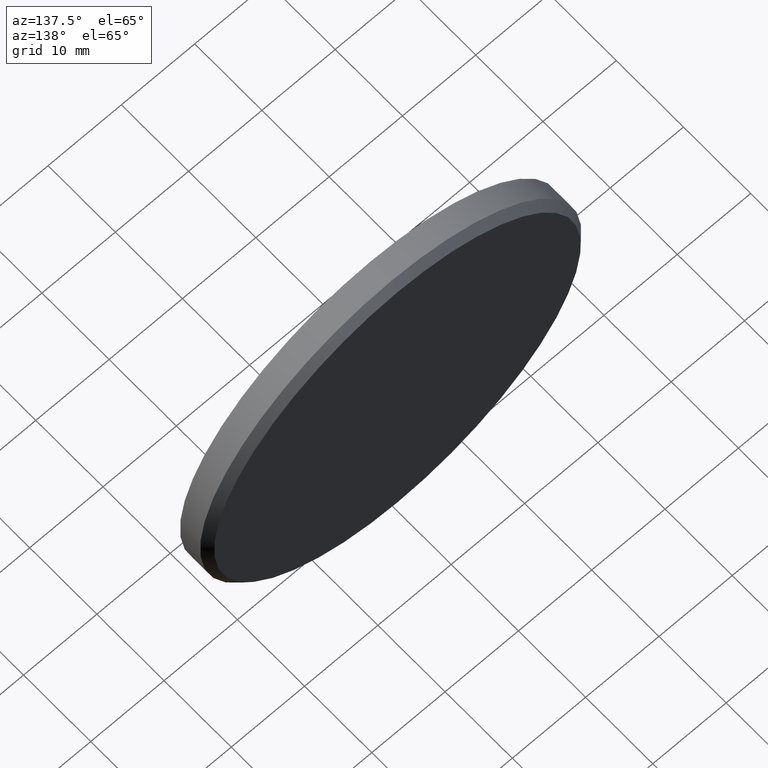
[diagram: clean part render]
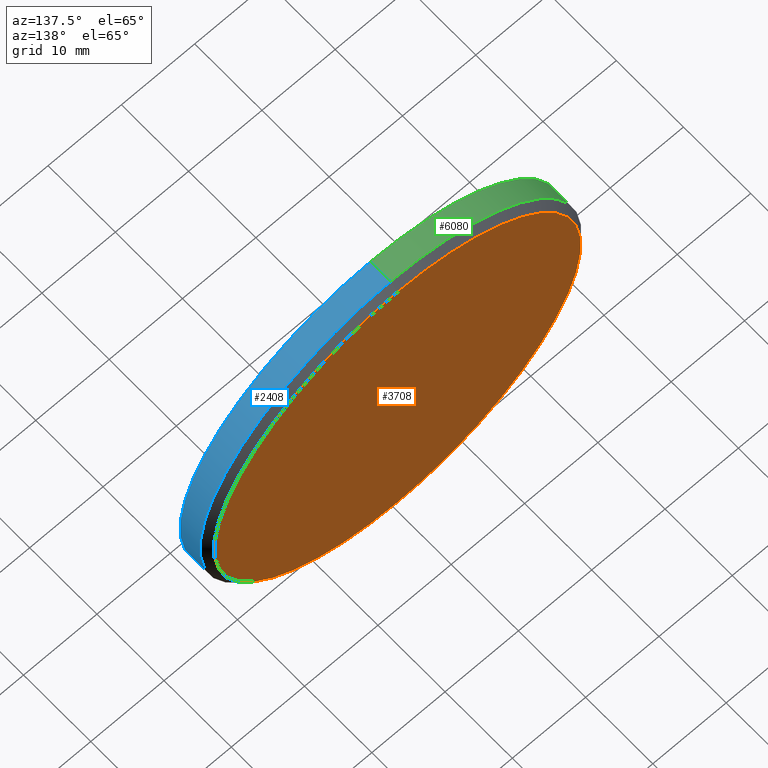
[diagram: same view with three faces highlighted in distinct colors, each labeled with its STEP entity id]
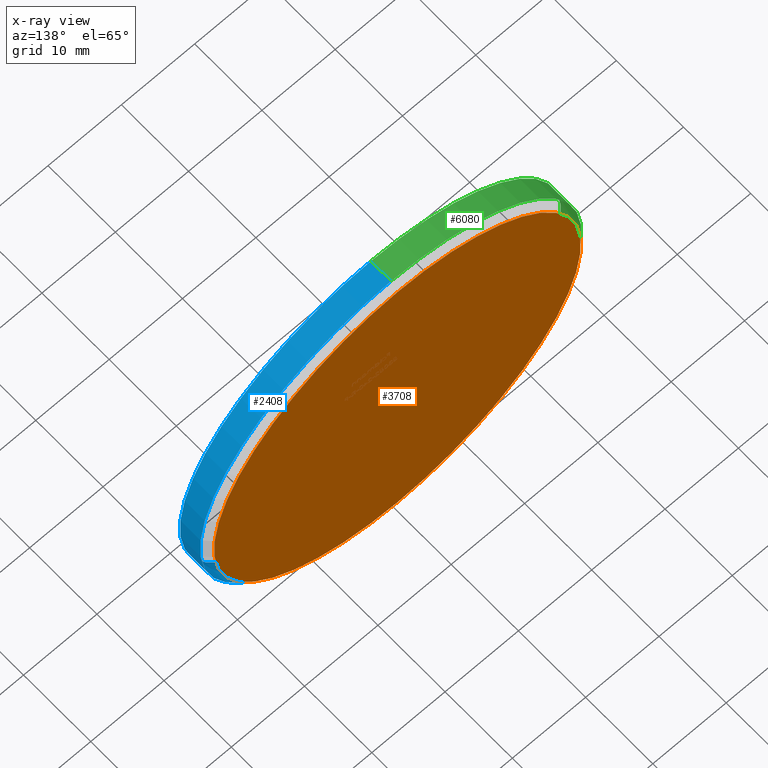
[diagram: x-ray of the same camera — body ghosted, the three highlighted faces saturated]
A machine part, auxiliary view with three faces highlighted in distinct colors.
The next image is the same camera in x-ray (body ghosted, the three faces saturated) — at least one of them is partly hidden behind the body in this view.
Their STEP definitions:

[orange] entity #3708 — the highlighted planar face has unit normal (0, 1, 0).
#278 = CARTESIAN_POINT ( 'NONE',  ( 0.000000000000000000, 2.000000000000000000, -25.00000000000001421 ) ) ;
#674 = CARTESIAN_POINT ( 'NONE',  ( 0.000000000000000000, 2.000000000000000000, 0.000000000000000000 ) ) ;
#1842 = DIRECTION ( 'NONE',  ( 0.000000000000000000, 1.000000000000000000, 0.000000000000000000 ) ) ;
#2423 = FACE_OUTER_BOUND ( 'NONE', #3635, .T. ) ;
#2846 = PLANE ( 'NONE',  #4662 ) ;
#3635 = EDGE_LOOP ( 'NONE', ( #7899, #14395 ) ) ;
#3708 = ADVANCED_FACE ( 'NONE', ( #2423 ), #2846, .T. ) ;
#3841 = CIRCLE ( 'NONE', #10039, 25.00000000000001421 ) ;
#3885 = EDGE_CURVE ( 'NONE', #4814, #8235, #3841, .T. ) ;
#4662 = AXIS2_PLACEMENT_3D ( 'NONE', #674, #1842, #11075 ) ;
#4668 = EDGE_CURVE ( 'NONE', #8235, #4814, #7441, .T. ) ;
#4814 = VERTEX_POINT ( 'NONE', #10051 ) ;
#7152 = DIRECTION ( 'NONE',  ( 0.000000000000000000, 0.000000000000000000, 1.000000000000000000 ) ) ;
#7441 = CIRCLE ( 'NONE', #10457, 25.00000000000001421 ) ;
#7899 = ORIENTED_EDGE ( 'NONE', *, *, #4668, .T. ) ;
#8235 = VERTEX_POINT ( 'NONE', #278 ) ;
#8416 = CARTESIAN_POINT ( 'NONE',  ( 0.000000000000000000, 2.000000000000000000, 0.000000000000000000 ) ) ;
#9065 = CARTESIAN_POINT ( 'NONE',  ( 0.000000000000000000, 2.000000000000000000, 0.000000000000000000 ) ) ;
#10039 = AXIS2_PLACEMENT_3D ( 'NONE', #9065, #13688, #14680 ) ;
#10051 = CARTESIAN_POINT ( 'NONE',  ( 3.122849337825751406E-15, 2.000000000000000000, 25.00000000000001421 ) ) ;
#10457 = AXIS2_PLACEMENT_3D ( 'NONE', #8416, #14199, #7152 ) ;
#11075 = DIRECTION ( 'NONE',  ( 0.000000000000000000, -0.000000000000000000, 1.000000000000000000 ) ) ;
#13688 = DIRECTION ( 'NONE',  ( 0.000000000000000000, 1.000000000000000000, 0.000000000000000000 ) ) ;
#14199 = DIRECTION ( 'NONE',  ( 0.000000000000000000, 1.000000000000000000, 0.000000000000000000 ) ) ;
#14395 = ORIENTED_EDGE ( 'NONE', *, *, #3885, .T. ) ;
#14680 = DIRECTION ( 'NONE',  ( 0.000000000000000000, 0.000000000000000000, 1.000000000000000000 ) ) ;

[blue] entity #2408 — the highlighted cylindrical surface (partial cylindrical patch) has radius 26 mm, axis along (-0, -1, -0).
#782 = DIRECTION ( 'NONE',  ( -0.000000000000000000, -1.000000000000000000, -0.000000000000000000 ) ) ;
#880 = EDGE_CURVE ( 'NONE', #1434, #5705, #12685, .T. ) ;
#1068 = CARTESIAN_POINT ( 'NONE',  ( 3.184081677783118585E-15, -2.000000000000000000, 26.00000000000000355 ) ) ;
#1434 = VERTEX_POINT ( 'NONE', #2389 ) ;
#1678 = DIRECTION ( 'NONE',  ( 0.000000000000000000, 0.000000000000000000, 1.000000000000000000 ) ) ;
#1746 = CARTESIAN_POINT ( 'NONE',  ( 0.000000000000000000, -2.000000000000000000, 0.000000000000000000 ) ) ;
#1844 = DIRECTION ( 'NONE',  ( 0.000000000000000000, 1.000000000000000000, 0.000000000000000000 ) ) ;
#1957 = EDGE_CURVE ( 'NONE', #13889, #10024, #8348, .T. ) ;
#2014 = ORIENTED_EDGE ( 'NONE', *, *, #1957, .T. ) ;
#2389 = CARTESIAN_POINT ( 'NONE',  ( 0.000000000000000000, 1.000000000000013101, -26.00000000000000355 ) ) ;
#2408 = ADVANCED_FACE ( 'NONE', ( #3490 ), #13201, .T. ) ;
#2913 = EDGE_CURVE ( 'NONE', #1434, #10024, #6350, .T. ) ;
#3490 = FACE_OUTER_BOUND ( 'NONE', #13185, .T. ) ;
#3971 = CARTESIAN_POINT ( 'NONE',  ( 0.000000000000000000, 1.000000000000013101, 0.000000000000000000 ) ) ;
#4509 = DIRECTION ( 'NONE',  ( -0.000000000000000000, -1.000000000000000000, -0.000000000000000000 ) ) ;
#4883 = VECTOR ( 'NONE', #6332, 1000.000000000000000 ) ;
#5705 = VERTEX_POINT ( 'NONE', #6546 ) ;
#6332 = DIRECTION ( 'NONE',  ( -0.000000000000000000, -1.000000000000000000, -0.000000000000000000 ) ) ;
#6350 = LINE ( 'NONE', #13702, #9402 ) ;
#6546 = CARTESIAN_POINT ( 'NONE',  ( 3.184081677783118585E-15, 1.000000000000013101, 26.00000000000000355 ) ) ;
#6639 = EDGE_CURVE ( 'NONE', #5705, #13889, #11007, .T. ) ;
#7463 = AXIS2_PLACEMENT_3D ( 'NONE', #14629, #782, #9967 ) ;
#8348 = CIRCLE ( 'NONE', #14393, 26.00000000000000355 ) ;
#8639 = DIRECTION ( 'NONE',  ( 0.000000000000000000, -1.000000000000000000, 0.000000000000000000 ) ) ;
#8656 = DIRECTION ( 'NONE',  ( 0.000000000000000000, 0.000000000000000000, 1.000000000000000000 ) ) ;
#9402 = VECTOR ( 'NONE', #4509, 1000.000000000000000 ) ;
#9967 = DIRECTION ( 'NONE',  ( 0.000000000000000000, 0.000000000000000000, -1.000000000000000000 ) ) ;
#10024 = VERTEX_POINT ( 'NONE', #12877 ) ;
#10426 = ORIENTED_EDGE ( 'NONE', *, *, #2913, .F. ) ;
#10725 = ORIENTED_EDGE ( 'NONE', *, *, #880, .T. ) ;
#11007 = LINE ( 'NONE', #13323, #4883 ) ;
#12685 = CIRCLE ( 'NONE', #14288, 26.00000000000000355 ) ;
#12877 = CARTESIAN_POINT ( 'NONE',  ( 0.000000000000000000, -2.000000000000000000, -26.00000000000000355 ) ) ;
#13185 = EDGE_LOOP ( 'NONE', ( #10725, #14830, #2014, #10426 ) ) ;
#13201 = CYLINDRICAL_SURFACE ( 'NONE', #7463, 26.00000000000000355 ) ;
#13323 = CARTESIAN_POINT ( 'NONE',  ( 3.184081677783118585E-15, 2.000000000000000000, 26.00000000000000355 ) ) ;
#13702 = CARTESIAN_POINT ( 'NONE',  ( 0.000000000000000000, 2.000000000000000000, -26.00000000000000355 ) ) ;
#13889 = VERTEX_POINT ( 'NONE', #1068 ) ;
#14288 = AXIS2_PLACEMENT_3D ( 'NONE', #3971, #8639, #1678 ) ;
#14393 = AXIS2_PLACEMENT_3D ( 'NONE', #1746, #1844, #8656 ) ;
#14629 = CARTESIAN_POINT ( 'NONE',  ( 0.000000000000000000, 2.000000000000000000, 0.000000000000000000 ) ) ;
#14830 = ORIENTED_EDGE ( 'NONE', *, *, #6639, .T. ) ;

[green] entity #6080 — the highlighted cylindrical surface (partial cylindrical patch) has radius 26 mm, axis along (-0, -1, -0).
#288 = AXIS2_PLACEMENT_3D ( 'NONE', #5218, #13275, #5267 ) ;
#503 = CIRCLE ( 'NONE', #288, 26.00000000000000355 ) ;
#945 = EDGE_LOOP ( 'NONE', ( #8211, #7320, #1634, #7674 ) ) ;
#1068 = CARTESIAN_POINT ( 'NONE',  ( 3.184081677783118585E-15, -2.000000000000000000, 26.00000000000000355 ) ) ;
#1434 = VERTEX_POINT ( 'NONE', #2389 ) ;
#1634 = ORIENTED_EDGE ( 'NONE', *, *, #2913, .T. ) ;
#2389 = CARTESIAN_POINT ( 'NONE',  ( 0.000000000000000000, 1.000000000000013101, -26.00000000000000355 ) ) ;
#2805 = DIRECTION ( 'NONE',  ( 0.000000000000000000, 0.000000000000000000, -1.000000000000000000 ) ) ;
#2913 = EDGE_CURVE ( 'NONE', #1434, #10024, #6350, .T. ) ;
#3361 = DIRECTION ( 'NONE',  ( 0.000000000000000000, 0.000000000000000000, 1.000000000000000000 ) ) ;
#4053 = EDGE_CURVE ( 'NONE', #10024, #13889, #8690, .T. ) ;
#4509 = DIRECTION ( 'NONE',  ( -0.000000000000000000, -1.000000000000000000, -0.000000000000000000 ) ) ;
#4765 = AXIS2_PLACEMENT_3D ( 'NONE', #12618, #5672, #3361 ) ;
#4883 = VECTOR ( 'NONE', #6332, 1000.000000000000000 ) ;
#5050 = CARTESIAN_POINT ( 'NONE',  ( 0.000000000000000000, 2.000000000000000000, 0.000000000000000000 ) ) ;
#5218 = CARTESIAN_POINT ( 'NONE',  ( 0.000000000000000000, 1.000000000000013101, 0.000000000000000000 ) ) ;
#5267 = DIRECTION ( 'NONE',  ( 0.000000000000000000, 0.000000000000000000, 1.000000000000000000 ) ) ;
#5672 = DIRECTION ( 'NONE',  ( 0.000000000000000000, 1.000000000000000000, 0.000000000000000000 ) ) ;
#5705 = VERTEX_POINT ( 'NONE', #6546 ) ;
#6080 = ADVANCED_FACE ( 'NONE', ( #13708 ), #9935, .T. ) ;
#6332 = DIRECTION ( 'NONE',  ( -0.000000000000000000, -1.000000000000000000, -0.000000000000000000 ) ) ;
#6350 = LINE ( 'NONE', #13702, #9402 ) ;
#6546 = CARTESIAN_POINT ( 'NONE',  ( 3.184081677783118585E-15, 1.000000000000013101, 26.00000000000000355 ) ) ;
#6639 = EDGE_CURVE ( 'NONE', #5705, #13889, #11007, .T. ) ;
#7320 = ORIENTED_EDGE ( 'NONE', *, *, #14122, .T. ) ;
#7372 = AXIS2_PLACEMENT_3D ( 'NONE', #5050, #9671, #2805 ) ;
#7674 = ORIENTED_EDGE ( 'NONE', *, *, #4053, .T. ) ;
#8211 = ORIENTED_EDGE ( 'NONE', *, *, #6639, .F. ) ;
#8690 = CIRCLE ( 'NONE', #4765, 26.00000000000000355 ) ;
#9402 = VECTOR ( 'NONE', #4509, 1000.000000000000000 ) ;
#9671 = DIRECTION ( 'NONE',  ( -0.000000000000000000, -1.000000000000000000, -0.000000000000000000 ) ) ;
#9935 = CYLINDRICAL_SURFACE ( 'NONE', #7372, 26.00000000000000355 ) ;
#10024 = VERTEX_POINT ( 'NONE', #12877 ) ;
#11007 = LINE ( 'NONE', #13323, #4883 ) ;
#12618 = CARTESIAN_POINT ( 'NONE',  ( 0.000000000000000000, -2.000000000000000000, 0.000000000000000000 ) ) ;
#12877 = CARTESIAN_POINT ( 'NONE',  ( 0.000000000000000000, -2.000000000000000000, -26.00000000000000355 ) ) ;
#13275 = DIRECTION ( 'NONE',  ( 0.000000000000000000, -1.000000000000000000, 0.000000000000000000 ) ) ;
#13323 = CARTESIAN_POINT ( 'NONE',  ( 3.184081677783118585E-15, 2.000000000000000000, 26.00000000000000355 ) ) ;
#13702 = CARTESIAN_POINT ( 'NONE',  ( 0.000000000000000000, 2.000000000000000000, -26.00000000000000355 ) ) ;
#13708 = FACE_OUTER_BOUND ( 'NONE', #945, .T. ) ;
#13889 = VERTEX_POINT ( 'NONE', #1068 ) ;
#14122 = EDGE_CURVE ( 'NONE', #5705, #1434, #503, .T. ) ;